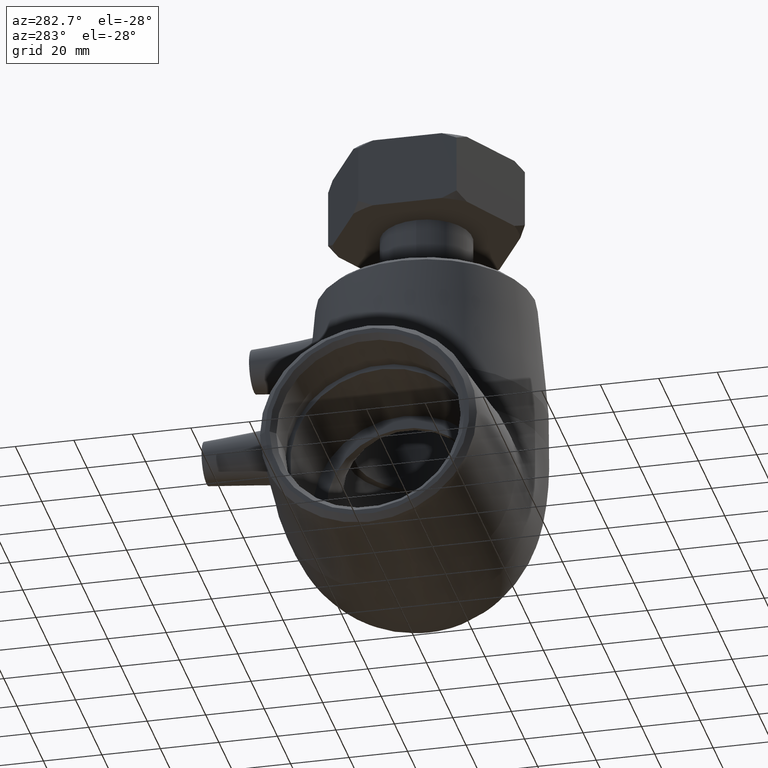
[diagram: clean part render]
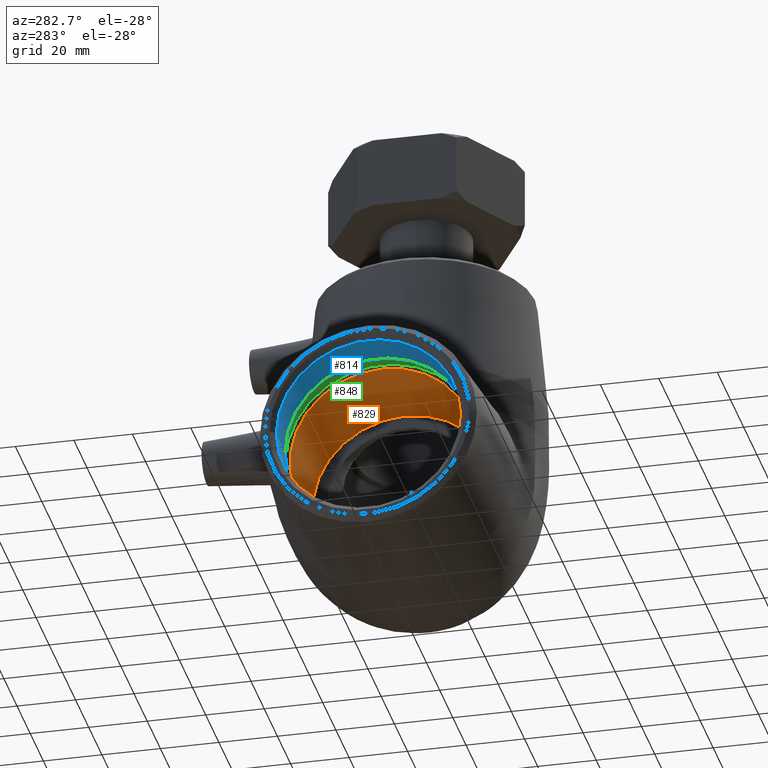
[diagram: same view with three faces highlighted in distinct colors, each labeled with its STEP entity id]
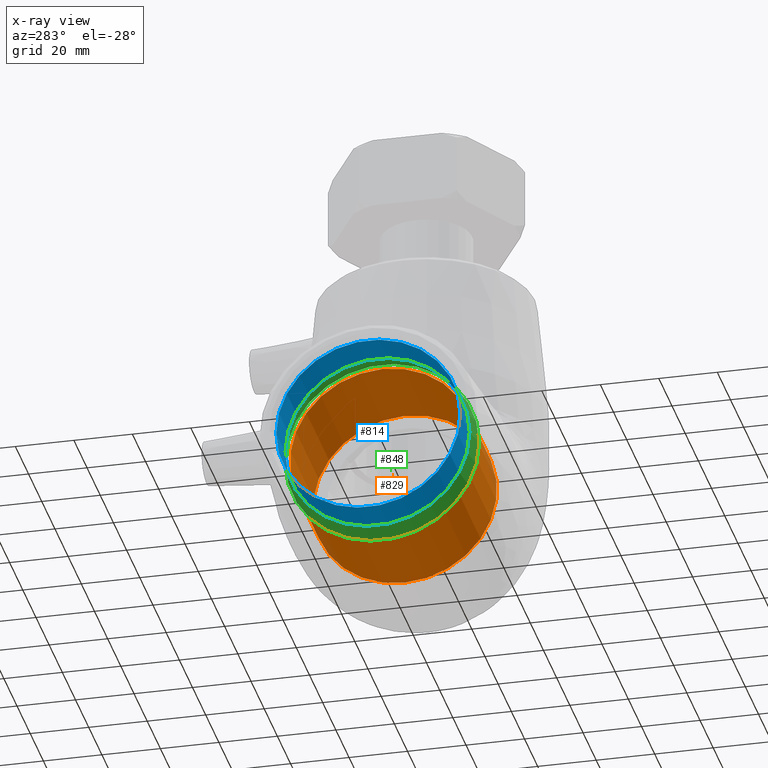
[diagram: x-ray of the same camera — body ghosted, the three highlighted faces saturated]
A machine part, auxiliary view with three faces highlighted in distinct colors.
The next image is the same camera in x-ray (body ghosted, the three faces saturated) — at least one of them is partly hidden behind the body in this view.
Their STEP definitions:

[orange] entity #829 — the highlighted cylindrical surface (bore or boss wall) has radius 31.5 mm, axis along (1, -0, 0).
#88=CYLINDRICAL_SURFACE('',#934,31.5);
#146=FACE_BOUND('',#297,.T.);
#206=FACE_OUTER_BOUND('',#296,.T.);
#296=EDGE_LOOP('',(#724));
#297=EDGE_LOOP('',(#725));
#371=CIRCLE('',#935,31.5);
#372=CIRCLE('',#936,31.5);
#451=VERTEX_POINT('',#1529);
#452=VERTEX_POINT('',#1531);
#549=EDGE_CURVE('',#451,#451,#371,.T.);
#550=EDGE_CURVE('',#452,#452,#372,.T.);
#724=ORIENTED_EDGE('',*,*,#549,.F.);
#725=ORIENTED_EDGE('',*,*,#550,.T.);
#829=ADVANCED_FACE('',(#206,#146),#88,.F.);
#934=AXIS2_PLACEMENT_3D('',#1528,#1152,#1153);
#935=AXIS2_PLACEMENT_3D('',#1530,#1154,#1155);
#936=AXIS2_PLACEMENT_3D('',#1532,#1156,#1157);
#1152=DIRECTION('center_axis',(1.,-1.54197642309049E-18,0.));
#1153=DIRECTION('ref_axis',(0.,0.,-1.));
#1154=DIRECTION('center_axis',(1.,-1.5419764230905E-18,0.));
#1155=DIRECTION('ref_axis',(0.,0.,-1.));
#1156=DIRECTION('center_axis',(1.,-1.5419764230905E-18,0.));
#1157=DIRECTION('ref_axis',(0.,0.,-1.));
#1528=CARTESIAN_POINT('Origin',(-90.,1.38777878078145E-16,0.));
#1529=CARTESIAN_POINT('',(-67.2,-3.75401660168248E-15,31.5));
#1530=CARTESIAN_POINT('Origin',(-67.2,1.03620815631681E-16,0.));
#1531=CARTESIAN_POINT('',(-33.,3.90852263927615E-15,31.5));
#1532=CARTESIAN_POINT('Origin',(-33.,5.08852219619864E-17,0.));

[blue] entity #814 — the highlighted cylindrical surface (bore or boss wall) has radius 31.5 mm, axis along (1, -0, 0).
#82=CYLINDRICAL_SURFACE('',#905,31.5);
#129=FACE_BOUND('',#265,.T.);
#191=FACE_OUTER_BOUND('',#264,.T.);
#264=EDGE_LOOP('',(#692));
#265=EDGE_LOOP('',(#693));
#354=CIRCLE('',#901,31.5);
#357=CIRCLE('',#906,31.5);
#432=VERTEX_POINT('',#1408);
#435=VERTEX_POINT('',#1416);
#530=EDGE_CURVE('',#432,#432,#354,.T.);
#533=EDGE_CURVE('',#435,#435,#357,.T.);
#692=ORIENTED_EDGE('',*,*,#533,.T.);
#693=ORIENTED_EDGE('',*,*,#530,.F.);
#814=ADVANCED_FACE('',(#191,#129),#82,.F.);
#901=AXIS2_PLACEMENT_3D('',#1409,#1086,#1087);
#905=AXIS2_PLACEMENT_3D('',#1415,#1094,#1095);
#906=AXIS2_PLACEMENT_3D('',#1417,#1096,#1097);
#1086=DIRECTION('center_axis',(1.,-1.5419764230905E-18,0.));
#1087=DIRECTION('ref_axis',(0.,-1.,0.));
#1094=DIRECTION('center_axis',(1.,-1.5419764230905E-18,0.));
#1095=DIRECTION('ref_axis',(0.,1.,0.));
#1096=DIRECTION('center_axis',(1.,-1.5419764230905E-18,0.));
#1097=DIRECTION('ref_axis',(0.,0.,-1.));
#1408=CARTESIAN_POINT('',(-88.11,31.5,3.85763741731416E-15));
#1409=CARTESIAN_POINT('Origin',(-88.11,-2.91433543964103E-18,0.));
#1415=CARTESIAN_POINT('Origin',(-82.4,-1.17190208154878E-17,0.));
#1416=CARTESIAN_POINT('',(-74.8,31.5,0.));
#1417=CARTESIAN_POINT('Origin',(-74.8,-2.34380416309755E-17,0.));

[green] entity #848 — the highlighted conical surface has half-angle 12 deg.
#162=FACE_BOUND('',#332,.T.);
#225=FACE_OUTER_BOUND('',#331,.T.);
#331=EDGE_LOOP('',(#762));
#332=EDGE_LOOP('',(#763));
#357=CIRCLE('',#906,31.5);
#386=CIRCLE('',#968,33.1154298686922);
#435=VERTEX_POINT('',#1416);
#466=VERTEX_POINT('',#1604);
#533=EDGE_CURVE('',#435,#435,#357,.T.);
#565=EDGE_CURVE('',#466,#466,#386,.T.);
#762=ORIENTED_EDGE('',*,*,#533,.F.);
#763=ORIENTED_EDGE('',*,*,#565,.T.);
#785=CONICAL_SURFACE('',#969,32.3077149343461,12.);
#848=ADVANCED_FACE('',(#225,#162),#785,.F.);
#906=AXIS2_PLACEMENT_3D('',#1417,#1096,#1097);
#968=AXIS2_PLACEMENT_3D('',#1605,#1220,#1221);
#969=AXIS2_PLACEMENT_3D('',#1606,#1222,#1223);
#1096=DIRECTION('center_axis',(1.,-1.5419764230905E-18,0.));
#1097=DIRECTION('ref_axis',(0.,0.,-1.));
#1220=DIRECTION('center_axis',(1.,-1.5419764230905E-18,0.));
#1221=DIRECTION('ref_axis',(0.,0.,-1.));
#1222=DIRECTION('center_axis',(1.,-1.5419764230905E-18,0.));
#1223=DIRECTION('ref_axis',(0.,1.,0.));
#1416=CARTESIAN_POINT('',(-74.8,31.5,0.));
#1417=CARTESIAN_POINT('Origin',(-74.8,-2.34380416309755E-17,0.));
#1604=CARTESIAN_POINT('',(-67.2,33.1154298686922,0.));
#1605=CARTESIAN_POINT('Origin',(-67.2,-3.51570624464633E-17,0.));
#1606=CARTESIAN_POINT('Origin',(-71.,-2.92975520387194E-17,0.));